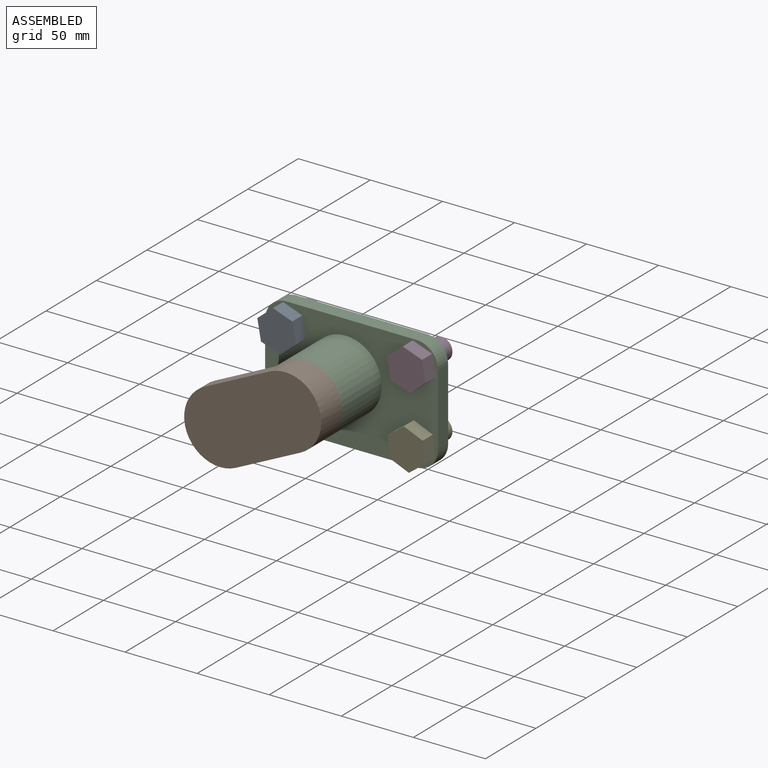
[diagram: assembled view]
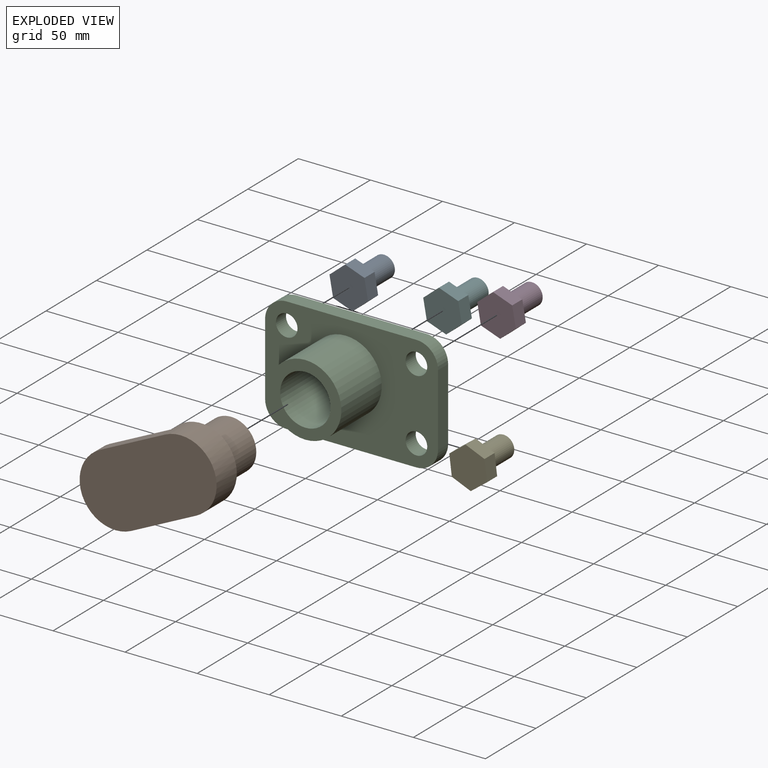
[diagram: exploded view]
GUIDED TOUR — MATED ASSEMBLY (Onshape document fc730bb8e18898fa2b288987, AutoMate assembly fc730bb8e18898fa2b288987_65706262b54a6f58fe81057a_912635c89a70d1004941ce3c_default)

This assembly has 6 components, labeled P0..P5 below (a component is one placed occurrence of a part; the same part can appear more than once), held together by 10 mates. A mate is a constraint between two components; its type names the relative motion it leaves free:
  CYLINDRICAL — leaves both rotation about and translation along the listed axis free,
  PLANAR — leaves sliding in the plane through the listed point (normal = the listed direction) and rotation about that normal free.
Axis/direction vectors are unit vectors and 'through' points are millimeter coordinates, both in the assembly's world frame.

MATES
  1. PLANAR "Planar 1": P2 <-> P1, direction (0.000, -1.000, 0.000) through (0.00, -50.00, 0.00) mm
  2. CYLINDRICAL "Cylindrical 3": P0 <-> P2, axis (0.000, 1.000, 0.000) through (-40.95, 15.00, 20.44) mm
  3. CYLINDRICAL "Cylindrical 5": P5 <-> P2, axis (0.000, 1.000, 0.000) through (-40.95, 15.00, -29.56) mm
  4. CYLINDRICAL "Cylindrical 1": P1 <-> P2, axis (0.000, 1.000, 0.000) through (0.00, -20.00, 0.00) mm
  5. PLANAR "Planar 3": P4 <-> P2, direction (0.000, 1.000, 0.000) through (49.05, -10.00, -29.56) mm
  6. PLANAR "Planar 5": P2 <-> P5, direction (0.000, -1.000, 0.000) through (5.23, -10.00, -5.88) mm
  7. CYLINDRICAL "Cylindrical 4": P4 <-> P2, axis (0.000, 1.000, 0.000) through (49.05, 15.00, -29.56) mm
  8. PLANAR "Planar 4": P0 <-> P2, direction (0.000, 1.000, 0.000) through (-45.13, -10.00, 8.86) mm
  9. CYLINDRICAL "Cylindrical 2": P3 <-> P2, axis (0.000, 1.000, 0.000) through (49.05, 15.00, 20.44) mm
  10. PLANAR "Planar 2": P3 <-> P2, direction (0.000, 1.000, 0.000) through (49.05, -10.00, 20.44) mm

ASSEMBLY ORDER
  1. P2 — the base component [order heuristic]
  2. P0 — core [order heuristic]
  3. P1 — core [order heuristic]
  4. P3 — core [order heuristic]
  5. P5 — core [order heuristic]
  6. P4 [order verified]
Order-tag legend:
  [order verified] — this step's position reverses a verified removal order: the component was checked to insert without passing through the ones already placed.
  [order heuristic] — the first 5 components form the assembly's core: parts whose collision-free extraction could not be verified, listed in mate-graph order.

Of the 6 components, 6 carry the full construction recipe — the FeatureScript program that regenerates the part's solid from scratch; the rest are supplied as boundary geometry only.
Each toured component is shown spotlighted twice — in the assembled view, then in the exploded view, where a leader line traces a displaced component back to its assembled socket (saturated green if recipe-attached, orange if geometry-only; every other component desaturated gray) — followed by its recipe or geometry summary and the mates that hold it.
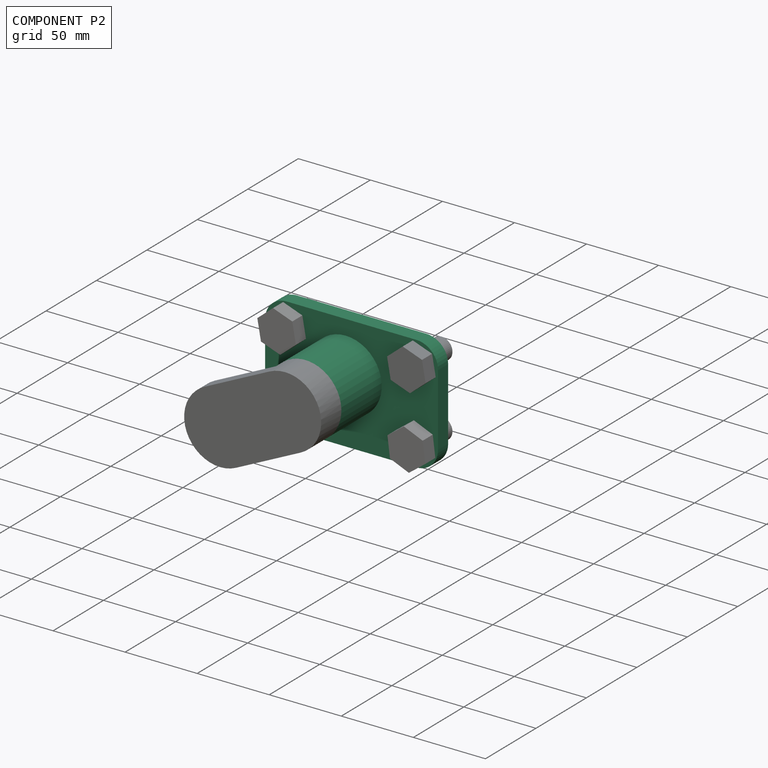
[diagram: component P2 — assembled]
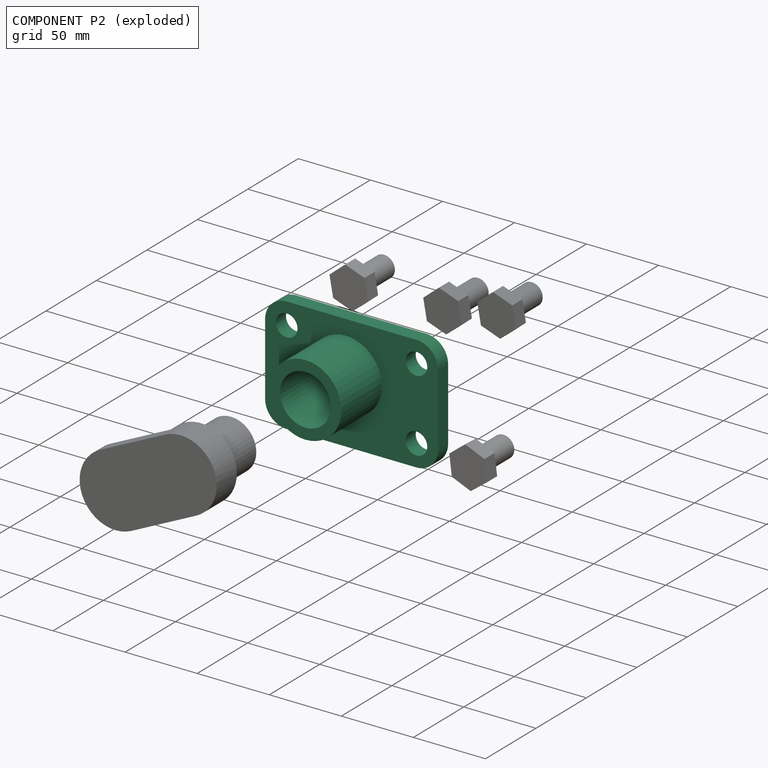
[diagram: component P2 — exploded]
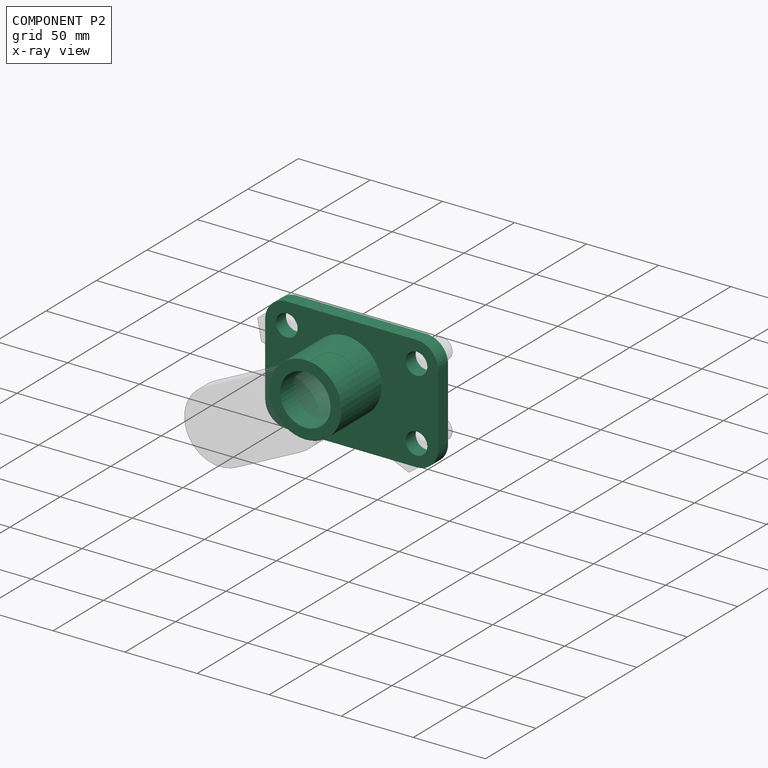
[diagram: component P2 — x-ray view]
COMPONENT P2 — recipe-attached (CADFS 00795063, mesh-verified: the recipe's output STEP matches this component's geometry to below the mesh-comparison resolution (tessellation chordal tolerance ~0.229 mm)).
Held by: PLANAR mate "Planar 1" to P1; CYLINDRICAL mate "Cylindrical 3" to P0; CYLINDRICAL mate "Cylindrical 5" to P5; CYLINDRICAL mate "Cylindrical 1" to P1; PLANAR mate "Planar 3" to P4; PLANAR mate "Planar 5" to P5; CYLINDRICAL mate "Cylindrical 4" to P4; PLANAR mate "Planar 4" to P0; CYLINDRICAL mate "Cylindrical 2" to P3; PLANAR mate "Planar 2" to P3.
Construction recipe (FeatureScript — the CAD program that rebuilds this solid; sketch coordinates are in the units given by the * unit suffixes, e.g. mm):

FeatureScript 1511;
import(path : "onshape/std/geometry.fs", version : "1511.0");
import(path : "onshape/std/common.fs", version : "1511.0");
const mm = millimeter;
const VERTEX = EntityType.VERTEX;
const EDGE = EntityType.EDGE;
const FACE = EntityType.FACE;
const BODY = EntityType.BODY;
function v(x, y){return vector(x, y);}
function OD(order){return orderDisambiguation(order);}
function OSD(set){return originalSetDisambiguation(set);}
function TD(topology){return topologyDisambiguation(topology);}
function TDD(query){return trueDependencyDisambiguation(query);}
function sQuery(a, b, c) {return sketchEntityQuery(a, b, c);}

annotation { "Feature Type Name" : "Feature", "Feature Type Description" : "" }
export const myFeature = defineFeature(function(context is Context, id is Id, definition is map)
    precondition{}
    {
        {
            var Q0;
            Q0=qCreatedBy(makeId("Front.planeOp"),FACE);
            var sketch = newSketch(context, id + "F0", { "sketchPlane" : qUnion([Q0])});
            skLineSegment(sketch, "E0.bottom", {"start": v(-40.95, 35.44) * mm, "end": v(49.05, 35.44) * mm});
            skLineSegment(sketch, "E0.top", {"start": v(-40.95, -44.56) * mm, "end": v(49.05, -44.56) * mm});
            skLineSegment(sketch, "E0.left", {"start": v(-55.95, 20.44) * mm, "end": v(-55.95, -29.56) * mm});
            skLineSegment(sketch, "E0.right", {"start": v(64.05, 20.44) * mm, "end": v(64.05, -29.56) * mm});
            skPoint(sketch, "E1.visualSharp", {"position": v(-55.95, 35.44) * mm});
            skArc(sketch, "E1.filletArc", {"start": v(-40.95, 35.44) * mm, "mid": v(-51.56, 31.05) * mm, "end": v(-55.95, 20.44) * mm});
            skPoint(sketch, "E2.visualSharp", {"position": v(64.05, 35.44) * mm});
            skArc(sketch, "E2.filletArc", {"start": v(64.05, 20.44) * mm, "mid": v(59.66, 31.05) * mm, "end": v(49.05, 35.44) * mm});
            skPoint(sketch, "E3.visualSharp", {"position": v(64.05, -44.56) * mm});
            skArc(sketch, "E3.filletArc", {"start": v(49.05, -44.56) * mm, "mid": v(59.66, -40.16) * mm, "end": v(64.05, -29.56) * mm});
            skPoint(sketch, "E4.visualSharp", {"position": v(-55.95, -44.56) * mm});
            skArc(sketch, "E4.filletArc", {"start": v(-55.95, -29.56) * mm, "mid": v(-51.56, -40.16) * mm, "end": v(-40.95, -44.56) * mm});
            skCircle(sketch, "E5", {"center": v(0, 0) * mm, "radius": 17.5 * mm});
            skCircle(sketch, "E6", {"center": v(0, 0) * mm, "radius": 25 * mm});
            skCircle(sketch, "E7", {"center": v(-40.95, 20.44) * mm, "radius": 7.5 * mm});
            skCircle(sketch, "E8", {"center": v(49.05, 20.44) * mm, "radius": 7.5 * mm});
            skCircle(sketch, "E9", {"center": v(49.05, -29.56) * mm, "radius": 7.5 * mm});
            skCircle(sketch, "E10", {"center": v(-40.95, -29.56) * mm, "radius": 7.5 * mm});
            skSolve(sketch);
        }
        {
            var Q0;
            Q0=makeQuery(id+"F0.imprint","IMPRINT",FACE,{"disambiguationData":[TD([[makeQuery(id+"F0.imprint","IMPRINT",EDGE,{"derivedFrom":sQuery(id+"F0.wireOp",EDGE,"E5")}),-1.0]])]});
            extrude(context, id + "F1", {"entities" : qUnion([Q0]), "depth" : 50 * mm, "offsetDistance" : 25 * mm});
        }
        {
            var Q0;
            Q0=makeQuery(id+"F0.imprint","IMPRINT",FACE,{"disambiguationData":[TD([[makeQuery(id+"F0.imprint","IMPRINT",EDGE,{"derivedFrom":sQuery(id+"F0.wireOp",EDGE,"E5")}),1.0]])]});
            extrude(context, id + "F2", {"entities" : qUnion([Q0]), "operationType" : NewBodyOperationType.REMOVE, "endBound" : BoundingType.THROUGH_ALL, "oppositeDirection" : true, "depth" : 25 * mm, "offsetDistance" : 25 * mm});
        }
        {
            var Q0;
            Q0=makeQuery(id+"F0.imprint","IMPRINT",FACE,{"disambiguationData":[TD([[makeQuery(id+"F0.imprint","IMPRINT",EDGE,{"derivedFrom":sQuery(id+"F0.wireOp",EDGE,"E0.bottom")}),-1.0]])]});
            extrude(context, id + "F3", {"entities" : qUnion([Q0]), "operationType" : NewBodyOperationType.ADD, "depth" : 10 * mm, "offsetDistance" : 25 * mm});
        }
    });
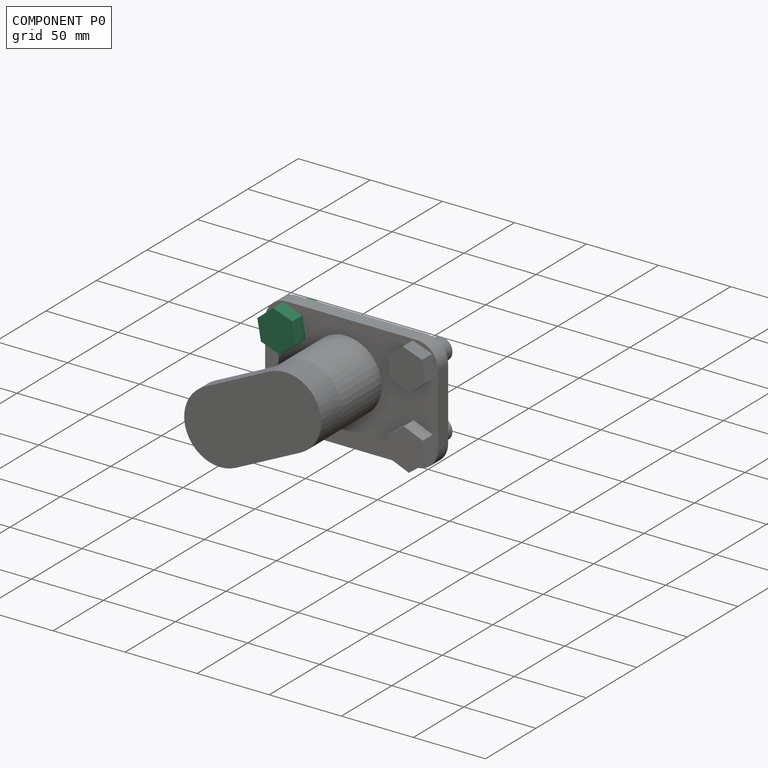
[diagram: component P0 — assembled]
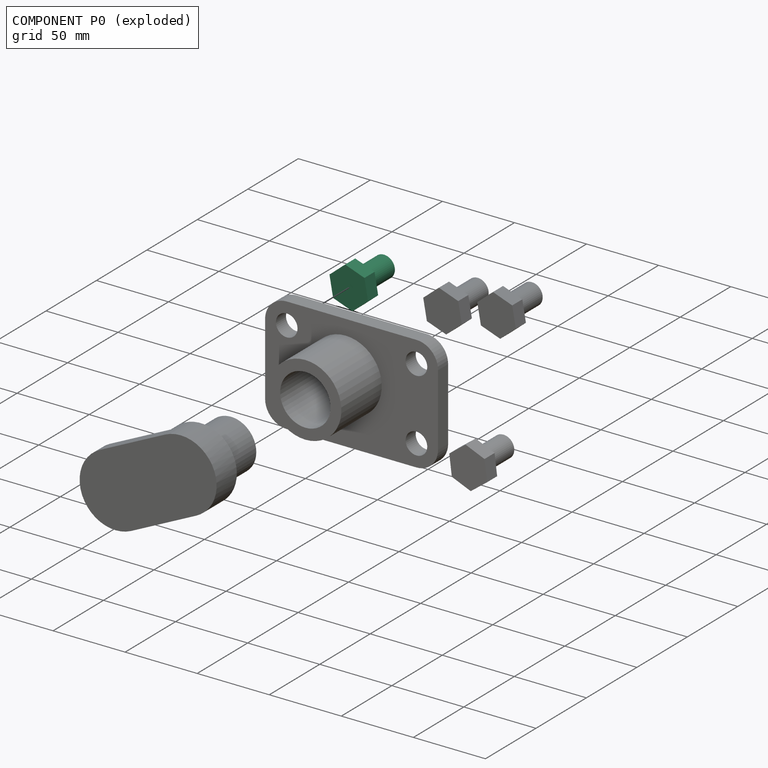
[diagram: component P0 — exploded]
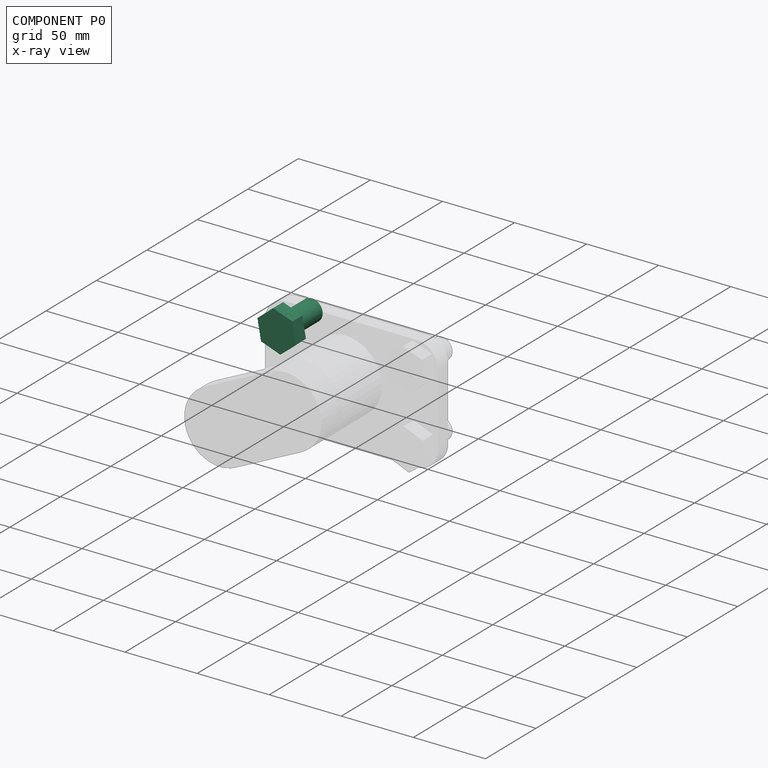
[diagram: component P0 — x-ray view]
COMPONENT P0 — recipe-attached (CADFS 00795065, mesh-verified: the recipe's output STEP matches this component's geometry to below the mesh-comparison resolution (tessellation chordal tolerance ~0.0783 mm)).
Held by: CYLINDRICAL mate "Cylindrical 3" to P2; PLANAR mate "Planar 4" to P2.
Construction recipe (FeatureScript — the CAD program that rebuilds this solid; sketch coordinates are in the units given by the * unit suffixes, e.g. mm):

FeatureScript 1511;
import(path : "onshape/std/geometry.fs", version : "1511.0");
import(path : "onshape/std/common.fs", version : "1511.0");
const mm = millimeter;
const VERTEX = EntityType.VERTEX;
const EDGE = EntityType.EDGE;
const FACE = EntityType.FACE;
const BODY = EntityType.BODY;
function v(x, y){return vector(x, y);}
function OD(order){return orderDisambiguation(order);}
function OSD(set){return originalSetDisambiguation(set);}
function TD(topology){return topologyDisambiguation(topology);}
function TDD(query){return trueDependencyDisambiguation(query);}
function sQuery(a, b, c) {return sketchEntityQuery(a, b, c);}

annotation { "Feature Type Name" : "Feature", "Feature Type Description" : "" }
export const myFeature = defineFeature(function(context is Context, id is Id, definition is map)
    precondition{}
    {
        {
            var Q0;
            Q0=qCreatedBy(makeId("Front.planeOp"),FACE);
            var sketch = newSketch(context, id + "F0", { "sketchPlane" : qUnion([Q0])});
            skCircle(sketch, "E0.cCircle", {"center": v(0, 0) * mm, "radius": 12.32 * mm, "construction": true});
            skLineSegment(sketch, "E0.0", {"start": v(2.51, 14) * mm, "end": v(13.38, 4.83) * mm});
            skLineSegment(sketch, "E0.1", {"start": v(13.38, 4.83) * mm, "end": v(10.87, -9.17) * mm});
            skLineSegment(sketch, "E0.2", {"start": v(10.87, -9.17) * mm, "end": v(-2.51, -14) * mm});
            skLineSegment(sketch, "E0.3", {"start": v(-2.51, -14) * mm, "end": v(-13.38, -4.83) * mm});
            skLineSegment(sketch, "E0.4", {"start": v(-13.38, -4.83) * mm, "end": v(-10.87, 9.17) * mm});
            skLineSegment(sketch, "E0.5", {"start": v(-10.87, 9.17) * mm, "end": v(2.51, 14) * mm});
            skPoint(sketch, "E0.0.midPoint", {"position": v(7.95, 9.41) * mm});
            skCircle(sketch, "E1", {"center": v(0, 0) * mm, "radius": 7.5 * mm});
            skSolve(sketch);
        }
        {
            var Q0;
            Q0=makeQuery(id+"F0.imprint","IMPRINT",FACE,{"disambiguationData":[TD([[makeQuery(id+"F0.imprint","IMPRINT",EDGE,{"derivedFrom":sQuery(id+"F0.wireOp",EDGE,"E1")}),1.0]])]});
            extrude(context, id + "F1", {"entities" : qUnion([Q0]), "depth" : 35 * mm, "offsetDistance" : 25 * mm});
        }
        {
            var Q0;
            Q0=makeQuery(id+"F0.imprint","IMPRINT",FACE,{"disambiguationData":[TD([[makeQuery(id+"F0.imprint","IMPRINT",EDGE,{"derivedFrom":sQuery(id+"F0.wireOp",EDGE,"E0.0")}),-1.0]])]});
            extrude(context, id + "F2", {"entities" : qUnion([Q0]), "operationType" : NewBodyOperationType.ADD, "depth" : 10 * mm, "offsetDistance" : 25 * mm});
        }
    });
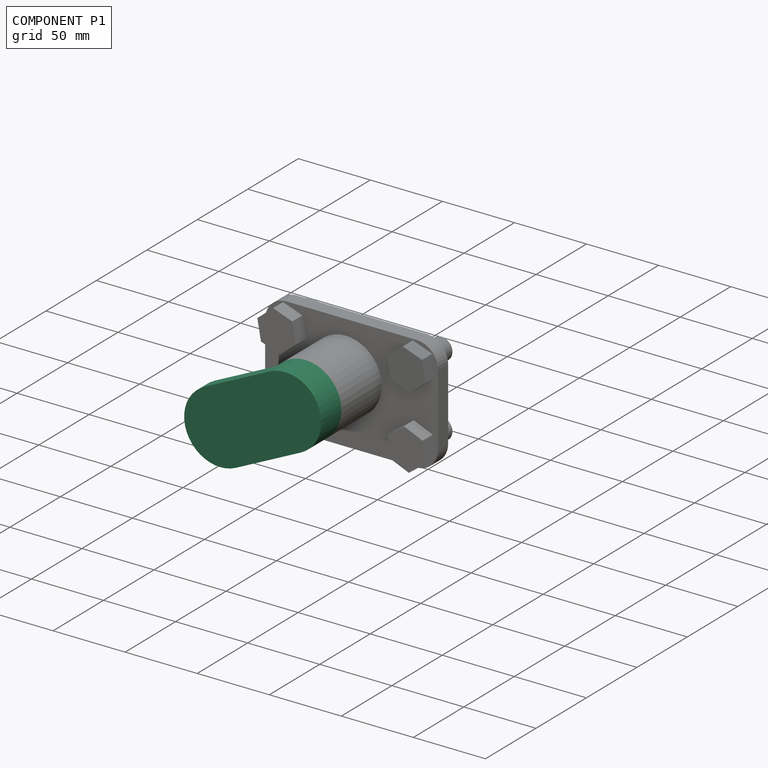
[diagram: component P1 — assembled]
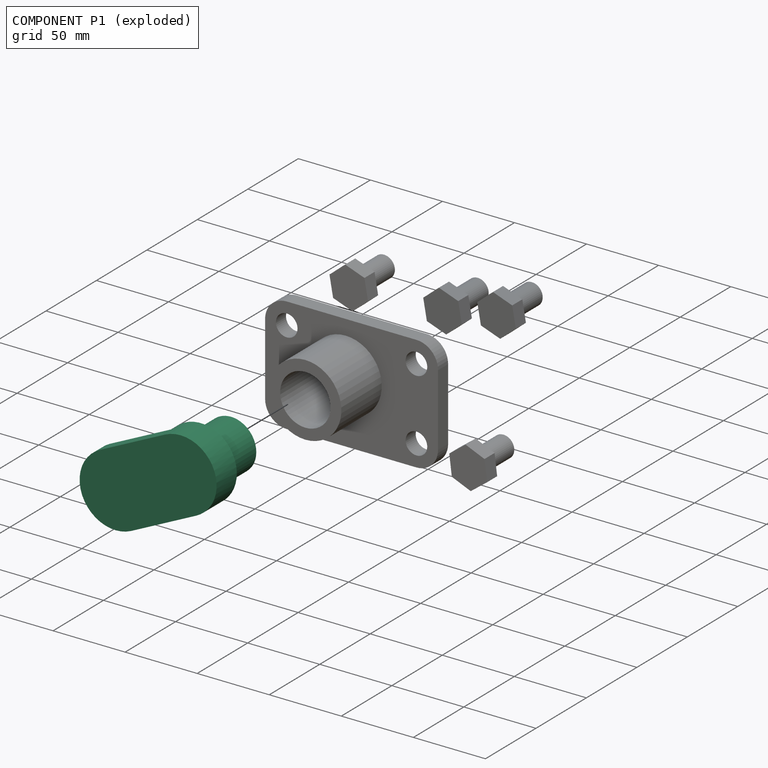
[diagram: component P1 — exploded]
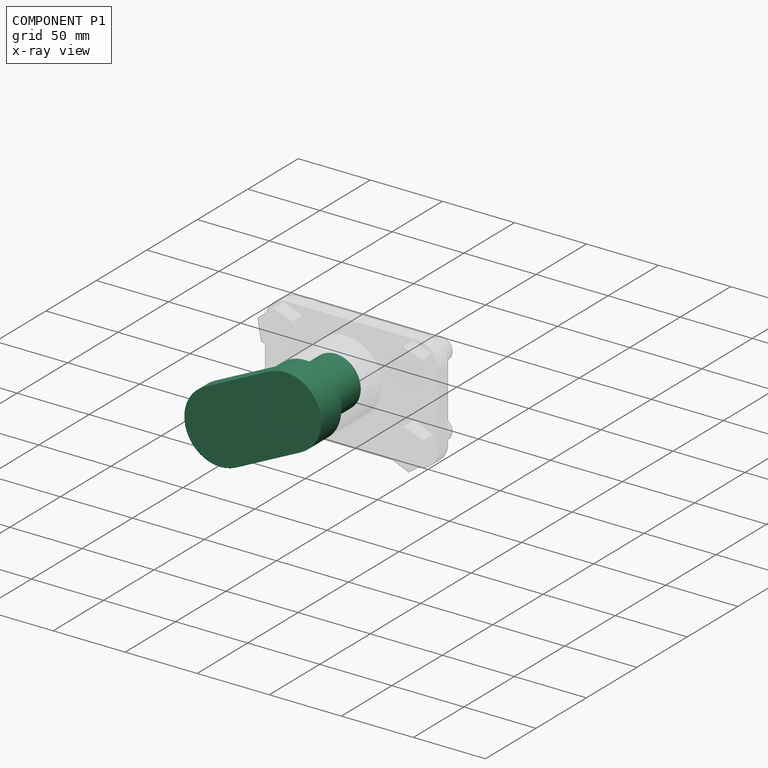
[diagram: component P1 — x-ray view]
COMPONENT P1 — recipe-attached (CADFS 00795064, mesh-verified: the recipe's output STEP matches this component's geometry to below the mesh-comparison resolution (tessellation chordal tolerance ~0.184 mm)).
Held by: PLANAR mate "Planar 1" to P2; CYLINDRICAL mate "Cylindrical 1" to P2.
Construction recipe (FeatureScript — the CAD program that rebuilds this solid; sketch coordinates are in the units given by the * unit suffixes, e.g. mm):

FeatureScript 1511;
import(path : "onshape/std/geometry.fs", version : "1511.0");
import(path : "onshape/std/common.fs", version : "1511.0");
const mm = millimeter;
const VERTEX = EntityType.VERTEX;
const EDGE = EntityType.EDGE;
const FACE = EntityType.FACE;
const BODY = EntityType.BODY;
function v(x, y){return vector(x, y);}
function OD(order){return orderDisambiguation(order);}
function OSD(set){return originalSetDisambiguation(set);}
function TD(topology){return topologyDisambiguation(topology);}
function TDD(query){return trueDependencyDisambiguation(query);}
function sQuery(a, b, c) {return sketchEntityQuery(a, b, c);}

annotation { "Feature Type Name" : "Feature", "Feature Type Description" : "" }
export const myFeature = defineFeature(function(context is Context, id is Id, definition is map)
    precondition{}
    {
        {
            var Q0;
            Q0=qCreatedBy(makeId("Front.planeOp"),FACE);
            var sketch = newSketch(context, id + "F0", { "sketchPlane" : qUnion([Q0])});
            skLineSegment(sketch, "E0.bottom", {"start": v(-22.48, 20.87) * mm, "end": v(27.52, 20.87) * mm});
            skLineSegment(sketch, "E0.top", {"start": v(-22.48, -29.13) * mm, "end": v(27.52, -29.13) * mm});
            skLineSegment(sketch, "E0.left", {"start": v(-47.48, -4.13) * mm, "end": v(-47.48, -4.13) * mm});
            skLineSegment(sketch, "E0.right", {"start": v(52.52, -4.13) * mm, "end": v(52.52, -4.13) * mm});
            skPoint(sketch, "E1.visualSharp", {"position": v(-47.48, 20.87) * mm});
            skArc(sketch, "E1.filletArc", {"start": v(-22.48, 20.87) * mm, "mid": v(-40.16, 13.55) * mm, "end": v(-47.48, -4.13) * mm});
            skPoint(sketch, "E2.visualSharp", {"position": v(-47.48, -29.13) * mm});
            skArc(sketch, "E2.filletArc", {"start": v(-47.48, -4.13) * mm, "mid": v(-40.16, -21.8) * mm, "end": v(-22.48, -29.13) * mm});
            skPoint(sketch, "E3.visualSharp", {"position": v(52.52, -29.13) * mm});
            skArc(sketch, "E3.filletArc", {"start": v(27.52, -29.13) * mm, "mid": v(45.2, -21.8) * mm, "end": v(52.52, -4.13) * mm});
            skPoint(sketch, "E4.visualSharp", {"position": v(52.52, 20.87) * mm});
            skArc(sketch, "E4.filletArc", {"start": v(52.52, -4.13) * mm, "mid": v(45.2, 13.55) * mm, "end": v(27.52, 20.87) * mm});
            skCircle(sketch, "E5", {"center": v(27.52, -4.13) * mm, "radius": 25 * mm});
            skCircle(sketch, "E6", {"center": v(27.52, -4.13) * mm, "radius": 17.5 * mm});
            skSolve(sketch);
        }
        {
            var Q0;
            {var subQ1=sQuery(id+"F0.wireOp",EDGE,"E0.bottom");Q0=makeQuery(id+"F0.imprint","IMPRINT",FACE,{"disambiguationData":[TD([[makeQuery(id+"F0.imprint","IMPRINT",EDGE,{"derivedFrom":subQ1}),-1.0]])]});}
            extrude(context, id + "F1", {"entities" : qUnion([Q0]), "depth" : 10 * mm, "offsetDistance" : 25 * mm});
        }
        {
            var Q0;
            Q0=makeQuery(id+"F0.imprint","IMPRINT",FACE,{"disambiguationData":[TD([[makeQuery(id+"F0.imprint","IMPRINT",EDGE,{"derivedFrom":sQuery(id+"F0.wireOp",EDGE,"E6")}),1.0]])]});
            extrude(context, id + "F2", {"entities" : qUnion([Q0]), "operationType" : NewBodyOperationType.ADD, "depth" : 50 * mm, "offsetDistance" : 25 * mm});
        }
        {
            var Q0;
            Q0=makeQuery(id+"F0.imprint","IMPRINT",FACE,{"disambiguationData":[TD([[makeQuery(id+"F0.imprint","IMPRINT",EDGE,{"derivedFrom":sQuery(id+"F0.wireOp",EDGE,"E6")}),-1.0]])]});
            extrude(context, id + "F3", {"entities" : qUnion([Q0]), "operationType" : NewBodyOperationType.ADD, "depth" : 20 * mm, "offsetDistance" : 25 * mm});
        }
    });
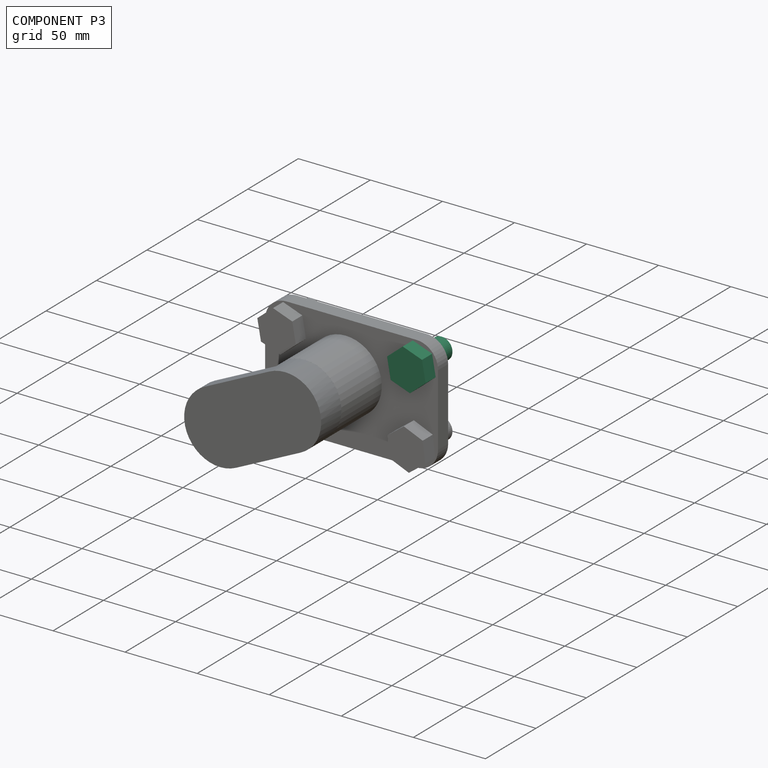
[diagram: component P3 — assembled]
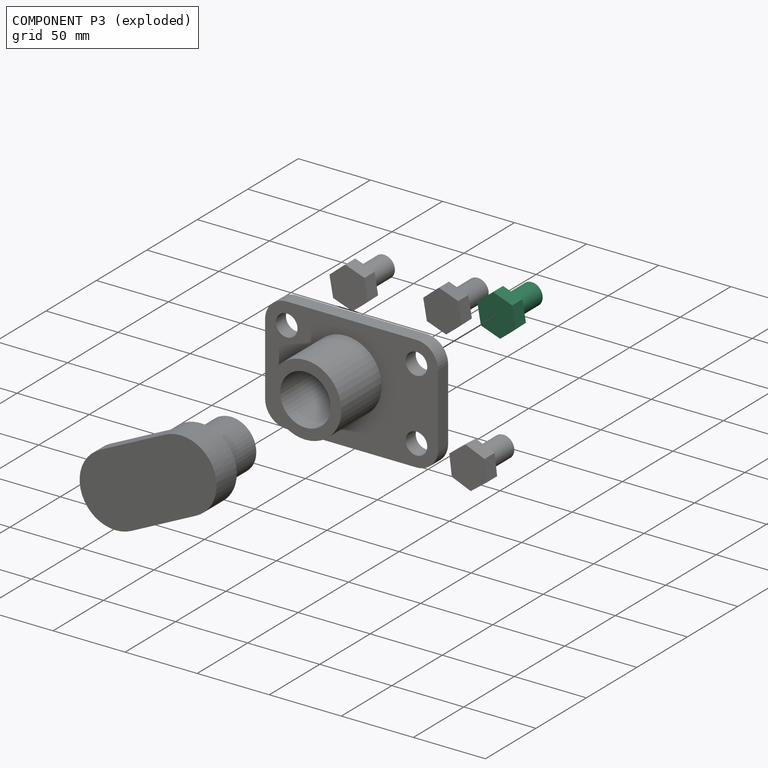
[diagram: component P3 — exploded]
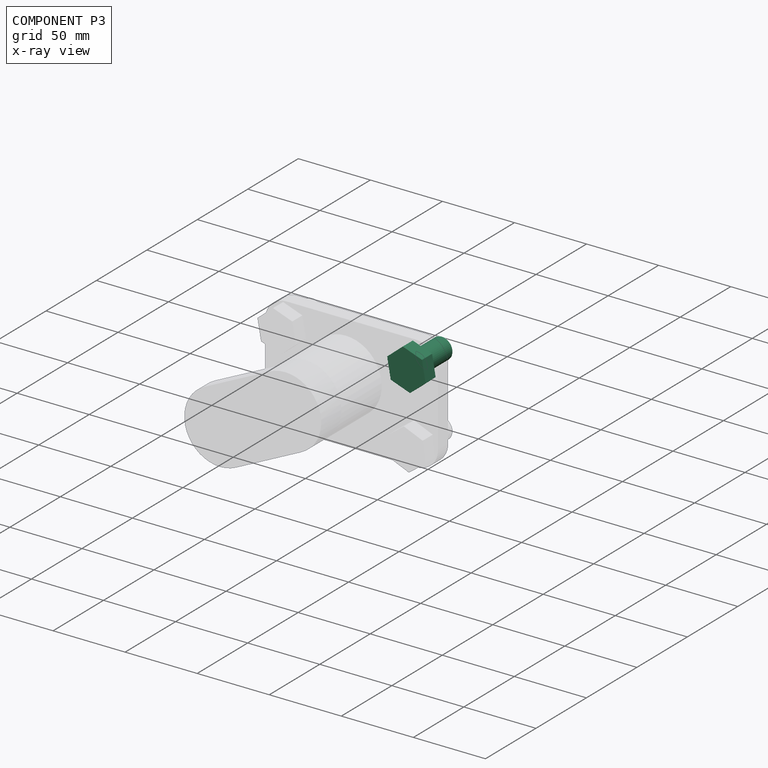
[diagram: component P3 — x-ray view]
COMPONENT P3 — same part as P0 (CADFS 00795065); its construction recipe is shown at P0.
Held by: CYLINDRICAL mate "Cylindrical 2" to P2; PLANAR mate "Planar 2" to P2.
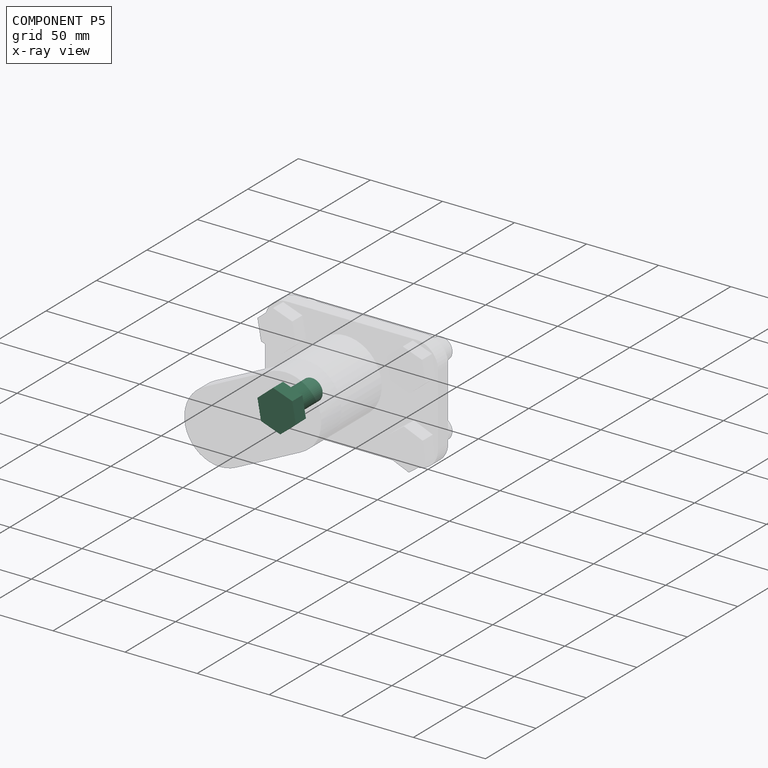
[diagram: component P5 — x-ray view]
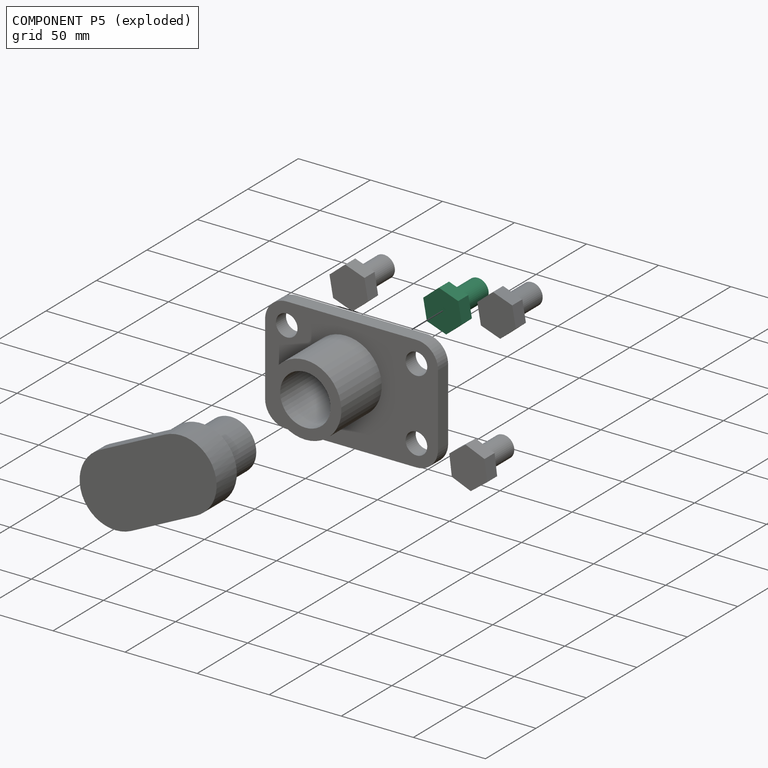
[diagram: component P5 — exploded]
COMPONENT P5 — same part as P0 (CADFS 00795065); its construction recipe is shown at P0.
Held by: CYLINDRICAL mate "Cylindrical 5" to P2; PLANAR mate "Planar 5" to P2.
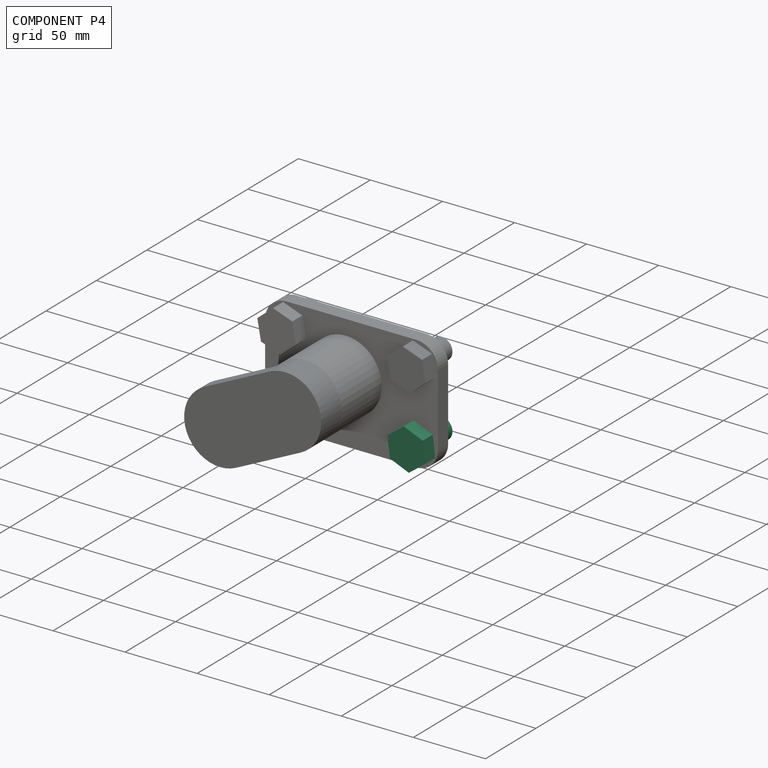
[diagram: component P4 — assembled]
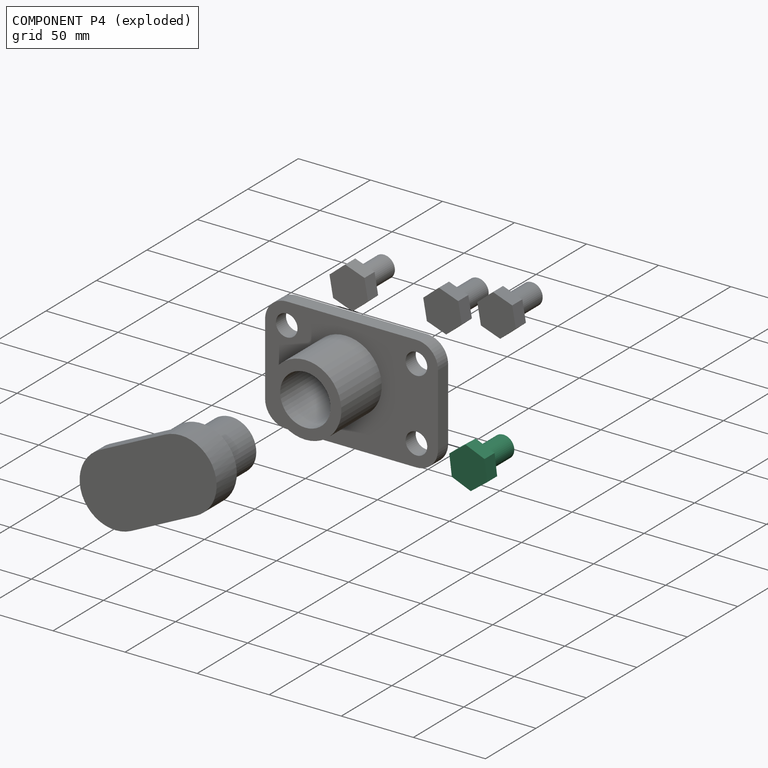
[diagram: component P4 — exploded]
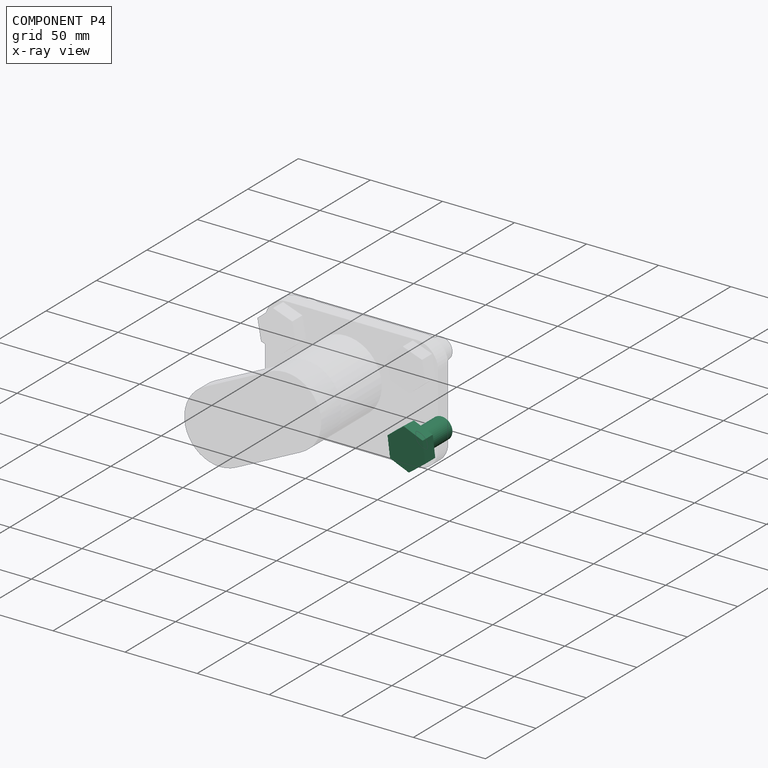
[diagram: component P4 — x-ray view]
COMPONENT P4 — same part as P0 (CADFS 00795065); its construction recipe is shown at P0.
Held by: PLANAR mate "Planar 3" to P2; CYLINDRICAL mate "Cylindrical 4" to P2.
PROVENANCE & LICENSES
Assembly (occurrences, transforms, mates, per-part STEP geometry): AutoMate dataset, Zenodo record 7776208, CC0.
Construction recipes: CADFS (HuggingFace VladPyatov/CADFS, CC-BY-4.0, layered over the ABC dataset), FeatureScript reconstruction programs keyed by ABC model id.
Join: ABC meta listings map ABC model id -> Onshape documentId; within a shared document, parts are matched by geometric signature (bounding-box dims + volume at 0.1% relative tolerance, exact B-rep face/solid counts).
Verification: 6 of this assembly's 6 components carry a recipe attachment, and every attachment is mesh-verified: the CADFS STEP and the AutoMate member STEP were compared as meshes in their shared local frame (symmetric sampled-point-to-mesh distance); worst across the 6 attachments: below the mesh-comparison resolution (tessellation chordal tolerance ~0.229 mm) on a 153 mm part.
Renders: orthographic iso camera (az 35 / el 25); the floor grid conveys scale (grid pitch printed in each image; no ruler). In the exploded view each component is displaced by its stored offset vector: the offsets alone carry the explosion direction (mate normal/axis signs are not orientation cues and do not encode it), and separation distances are assigned per mate-chain, not proportionally to assembly-order depth.
